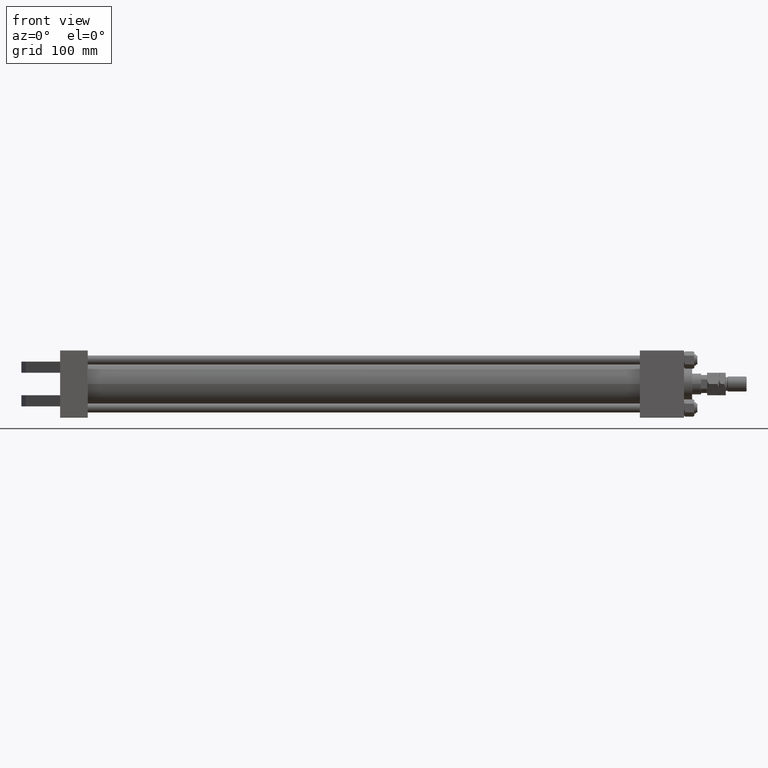
[diagram: clean part render]
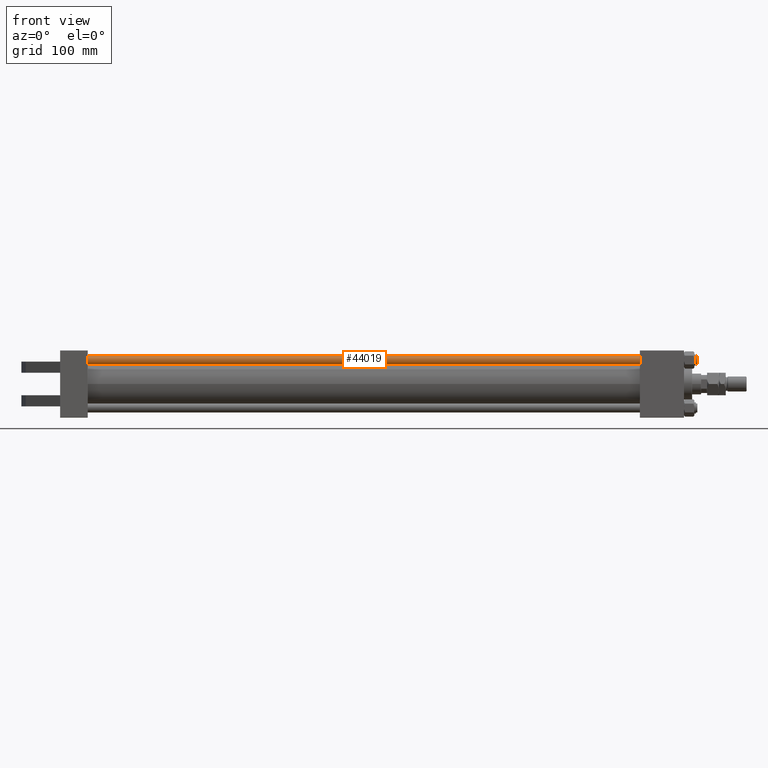
[diagram: same view with one face highlighted and labeled with its STEP entity id]
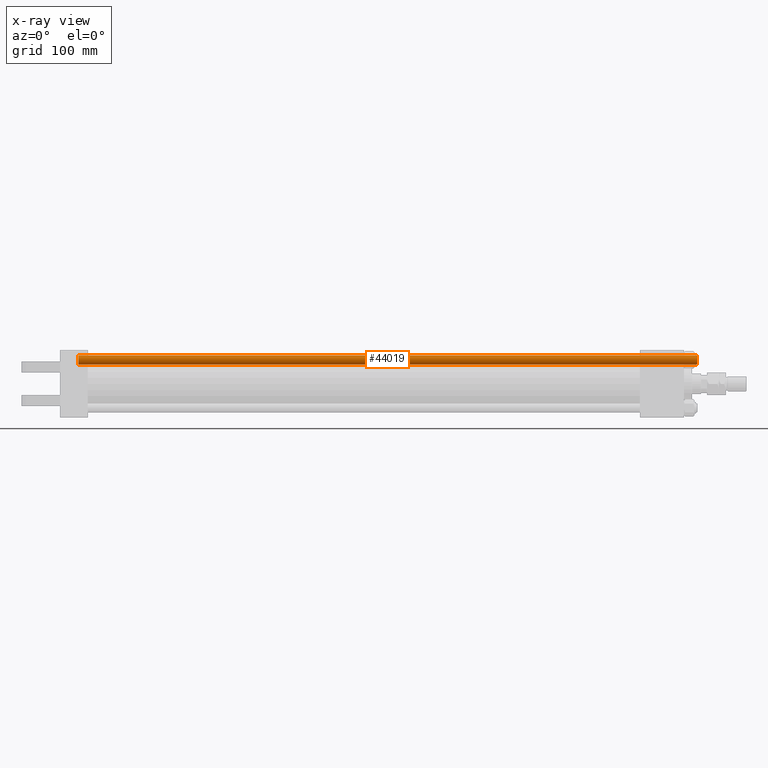
[diagram: x-ray of the same camera — body ghosted, the highlighted face saturated]
A machine part, front view. The second image highlights one B-rep face of the part: STEP entity #44019.
The next image is the same camera in x-ray: the body ghosted, the highlighted face saturated — about 0% of this face is hidden behind the body in this view.
In plain terms, the highlighted cylindrical surface (edge-blend (fillet) strip) has radius 6 mm, axis along (1, 0, 0).
Its self-contained STEP definition (entity closure, byte-faithful):
#200 = CARTESIAN_POINT ( 'NONE',  ( 6.000000000000000888, 7.347880794884120722E-16, 830.0000000000000000 ) ) ;
#2116 = DIRECTION ( 'NONE',  ( -0.000000000000000000, -0.000000000000000000, 1.000000000000000000 ) ) ;
#2788 = FACE_OUTER_BOUND ( 'NONE', #30517, .T. ) ;
#5529 = EDGE_CURVE ( 'NONE', #30707, #39138, #19649, .T. ) ;
#7073 = AXIS2_PLACEMENT_3D ( 'NONE', #37598, #25895, #22001 ) ;
#7638 = AXIS2_PLACEMENT_3D ( 'NONE', #15099, #31185, #11960 ) ;
#9234 = ORIENTED_EDGE ( 'NONE', *, *, #5529, .T. ) ;
#11960 = DIRECTION ( 'NONE',  ( 1.000000000000000000, 0.000000000000000000, 0.000000000000000000 ) ) ;
#14285 = CARTESIAN_POINT ( 'NONE',  ( 6.000000000000000888, 7.347880794884120722E-16, 829.5000000000001137 ) ) ;
#15099 = CARTESIAN_POINT ( 'NONE',  ( 0.000000000000000000, 0.000000000000000000, 829.5000000000001137 ) ) ;
#19649 = CIRCLE ( 'NONE', #44525, 6.000000000000000888 ) ;
#20295 = CARTESIAN_POINT ( 'NONE',  ( -6.000000000000000888, 0.000000000000000000, 829.5000000000001137 ) ) ;
#20930 = VECTOR ( 'NONE', #35509, 1000.000000000000000 ) ;
#21746 = CYLINDRICAL_SURFACE ( 'NONE', #7073, 6.000000000000000888 ) ;
#22001 = DIRECTION ( 'NONE',  ( -1.000000000000000000, 0.000000000000000000, 0.000000000000000000 ) ) ;
#22478 = EDGE_CURVE ( 'NONE', #50436, #29938, #44142, .T. ) ;
#24028 = ORIENTED_EDGE ( 'NONE', *, *, #33864, .T. ) ;
#25110 = DIRECTION ( 'NONE',  ( -0.000000000000000000, -0.000000000000000000, -1.000000000000000000 ) ) ;
#25895 = DIRECTION ( 'NONE',  ( -0.000000000000000000, -0.000000000000000000, -1.000000000000000000 ) ) ;
#26920 = VECTOR ( 'NONE', #25110, 1000.000000000000000 ) ;
#29938 = VERTEX_POINT ( 'NONE', #14285 ) ;
#30517 = EDGE_LOOP ( 'NONE', ( #45928, #24028, #9234, #45382 ) ) ;
#30707 = VERTEX_POINT ( 'NONE', #43898 ) ;
#31185 = DIRECTION ( 'NONE',  ( 0.000000000000000000, 0.000000000000000000, -1.000000000000000000 ) ) ;
#33864 = EDGE_CURVE ( 'NONE', #29938, #30707, #36018, .T. ) ;
#35509 = DIRECTION ( 'NONE',  ( -0.000000000000000000, -0.000000000000000000, -1.000000000000000000 ) ) ;
#36018 = LINE ( 'NONE', #200, #20930 ) ;
#36280 = LINE ( 'NONE', #43817, #26920 ) ;
#36426 = CARTESIAN_POINT ( 'NONE',  ( -6.000000000000000888, 0.000000000000000000, 0.5000000000001669775 ) ) ;
#37598 = CARTESIAN_POINT ( 'NONE',  ( 0.000000000000000000, 0.000000000000000000, 830.0000000000000000 ) ) ;
#39138 = VERTEX_POINT ( 'NONE', #36426 ) ;
#41838 = DIRECTION ( 'NONE',  ( 1.000000000000000000, 0.000000000000000000, 0.000000000000000000 ) ) ;
#43148 = EDGE_CURVE ( 'NONE', #50436, #39138, #36280, .T. ) ;
#43817 = CARTESIAN_POINT ( 'NONE',  ( -6.000000000000000888, 0.000000000000000000, 830.0000000000000000 ) ) ;
#43898 = CARTESIAN_POINT ( 'NONE',  ( 6.000000000000000888, 7.347880794884120722E-16, 0.5000000000001669775 ) ) ;
#44019 = ADVANCED_FACE ( 'NONE', ( #2788 ), #21746, .T. ) ;
#44142 = CIRCLE ( 'NONE', #7638, 6.000000000000000888 ) ;
#44525 = AXIS2_PLACEMENT_3D ( 'NONE', #45991, #2116, #41838 ) ;
#45382 = ORIENTED_EDGE ( 'NONE', *, *, #43148, .F. ) ;
#45928 = ORIENTED_EDGE ( 'NONE', *, *, #22478, .T. ) ;
#45991 = CARTESIAN_POINT ( 'NONE',  ( 0.000000000000000000, 0.000000000000000000, 0.5000000000001669775 ) ) ;
#50436 = VERTEX_POINT ( 'NONE', #20295 ) ;